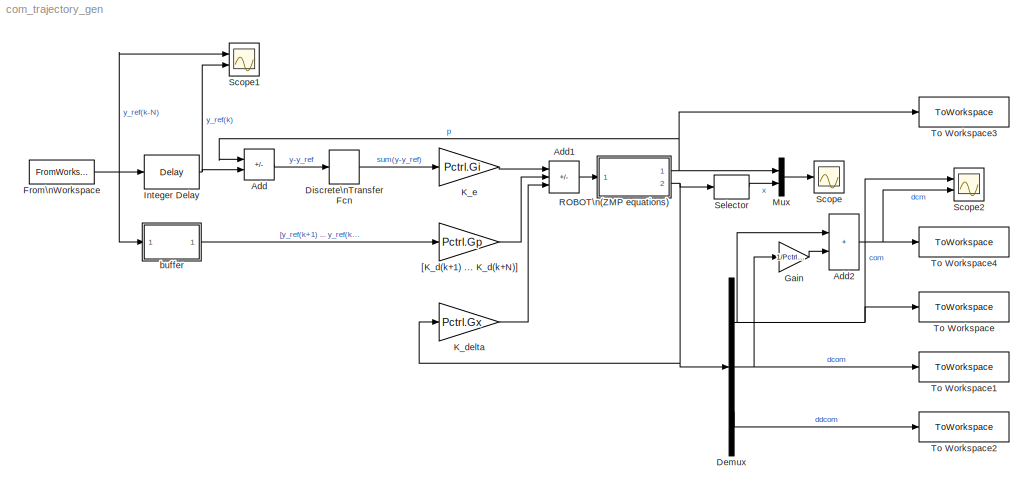
MODEL com_trajectory_gen
KIND model
BLOCK [Sum] Add
  IconShape = rectangular
  Inputs = +-
  Ports = [2, 1]
  SID = 1
BLOCK [Sum] Add1
  IconShape = rectangular
  Inputs = ---
  Ports = [3, 1]
  SID = 2
BLOCK [Sum] Add2
  IconShape = rectangular
  Ports = [2, 1]
  SID = 49
BLOCK [Demux] Demux
  Outputs = 3
  Ports = [1, 3]
  SID = 44
BLOCK [DiscreteTransferFcn] Discrete\nTransfer Fcn
  Denominator = [1 -1]
  InputPortMap = u0
  Ports = [1, 1]
  SID = 4
  SampleTime = Pctrl.Ts
BLOCK [FromWorkspace] From\nWorkspace
  OutputAfterFinalValue = Holding final value
  SID = 53
  SampleTime = Pctrl.Ts
  VariableName = sim_input
BLOCK [Gain] Gain
  Gain = 1/Pctrl.par.omega
  SID = 50
BLOCK [Delay] Integer Delay
  DelayLength = Pctrl.N_L
  InputPortMap = u0
  Ports = [1, 1]
  SID = 8
  SampleTime = Pctrl.Ts
BLOCK [Gain] K_delta
  Gain = Pctrl.Gx
  Multiplication = Matrix(K*u)
  SID = 6
BLOCK [Gain] K_e
  Gain = Pctrl.Gi
  Multiplication = Matrix(K*u)
  SID = 5
BLOCK [Mux] Mux
  DisplayOption = bar
  Inputs = 2
  Ports = [2, 1]
  SID = 9
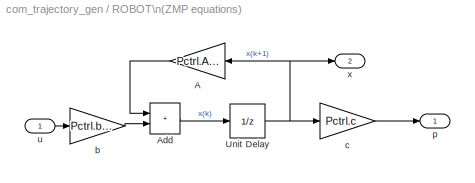
BLOCK [SubSystem] ROBOT\n(ZMP equations)
  Ports = [1, 2]
  RequestExecContextInheritance = off
  SID = 17
BLOCK [Gain] ROBOT\n(ZMP equations)/A
  Gain = Pctrl.A_d
  Multiplication = Matrix(K*u)
  SID = 19
BLOCK [Sum] ROBOT\n(ZMP equations)/Add
  IconShape = rectangular
  Ports = [2, 1]
  SID = 20
BLOCK [UnitDelay] ROBOT\n(ZMP equations)/Unit Delay
  HasFrameUpgradeWarning = on
  InitialCondition = [0,0,0]
  SID = 21
  SampleTime = Pctrl.Ts
BLOCK [Gain] ROBOT\n(ZMP equations)/b
  Gain = Pctrl.b_d
  Multiplication = Matrix(K*u)
  SID = 22
BLOCK [Gain] ROBOT\n(ZMP equations)/c
  Gain = Pctrl.c
  Multiplication = Matrix(K*u)
  SID = 23
BLOCK [Outport] ROBOT\n(ZMP equations)/p
  SID = 24
BLOCK [Inport] ROBOT\n(ZMP equations)/u
  SID = 18
BLOCK [Outport] ROBOT\n(ZMP equations)/x
  Port = 2
  SID = 25
BLOCK [Scope] Scope
  Floating = off
  NumInputPorts = 1
  Ports = [1]
  SID = 10
  ScopeSpecificationString = Simulink.scopes.TimeScopeBlockCfg('CurrentConfiguration', extmgr.ConfigurationSet(extmgr.Configuration('Core','General UI',true),extmgr.Configuration('Core','Source UI',true),extmgr.Configuration('Sources','WiredSimulink',true,'DataLoggingSaveFormat','StructureWithTime','DataLoggingDecimation','1','DataLoggingDecimateData',true),extmgr.Configuration('Visuals','Time Domain',true,'SerializedDisplays...<+1694ch>
BLOCK [Scope] Scope1
  Floating = off
  NumInputPorts = 2
  Ports = [2]
  SID = 11
  ScopeSpecificationString = Simulink.scopes.TimeScopeBlockCfg('CurrentConfiguration', extmgr.ConfigurationSet(extmgr.Configuration('Core','General UI',true),extmgr.Configuration('Core','Source UI',true),extmgr.Configuration('Sources','WiredSimulink',true,'DataLoggingVariableName','ScopeData1','DataLoggingSaveFormat','StructureWithTime','DataLoggingDecimation','1','DataLoggingDecimateData',true),extmgr.Configuration('Visuals'...<+2328ch>
BLOCK [Scope] Scope2
  Floating = off
  NumInputPorts = 2
  Ports = [2]
  SID = 52
  ScopeSpecificationString = Simulink.scopes.TimeScopeBlockCfg('CurrentConfiguration', extmgr.ConfigurationSet(extmgr.Configuration('Core','General UI',true),extmgr.Configuration('Core','Source UI',true),extmgr.Configuration('Sources','WiredSimulink',true,'DataLoggingVariableName','ScopeData1'),extmgr.Configuration('Visuals','Time Domain',true,'SerializedDisplays',{struct('MinYLimReal','-0.14806','MaxYLimReal','0.15275','YLab...<+1418ch>
BLOCK [Selector] Selector
  IndexOptions = Index vector (dialog)
  Indices = 1
  InputPortWidth = 3
  OutputSizes = 1
  Ports = [1, 1]
  SID = 12
BLOCK [ToWorkspace] To Workspace
  FixptAsFi = on
  MaxDataPoints = inf
  Ports = [1]
  SID = 45
  SampleTime = Pctrl.Ts
  SaveFormat = Timeseries
  VariableName = C
BLOCK [ToWorkspace] To Workspace1
  FixptAsFi = on
  MaxDataPoints = inf
  Ports = [1]
  SID = 46
  SampleTime = Pctrl.Ts
  SaveFormat = Timeseries
  VariableName = Cp
BLOCK [ToWorkspace] To Workspace2
  FixptAsFi = on
  MaxDataPoints = inf
  Ports = [1]
  SID = 47
  SampleTime = Pctrl.Ts
  SaveFormat = Timeseries
  VariableName = Cpp
BLOCK [ToWorkspace] To Workspace3
  FixptAsFi = on
  MaxDataPoints = inf
  Ports = [1]
  SID = 48
  SampleTime = Pctrl.Ts
  SaveFormat = Timeseries
  VariableName = P
BLOCK [ToWorkspace] To Workspace4
  FixptAsFi = on
  MaxDataPoints = inf
  Ports = [1]
  SID = 51
  SampleTime = Pctrl.Ts
  SaveFormat = Timeseries
  VariableName = Dcm
BLOCK [Gain] [K_d(k+1) ... K_d(k+N)]
  Gain = Pctrl.Gp
  Multiplication = Matrix(K*u)
  SID = 7
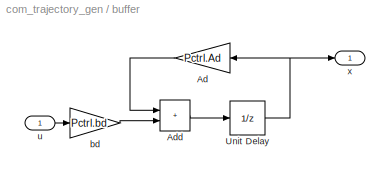
BLOCK [SubSystem] buffer
  Ports = [1, 1]
  RequestExecContextInheritance = off
  SID = 26
BLOCK [Gain] buffer/Ad
  Gain = Pctrl.Ad
  Multiplication = Matrix(K*u)
  SID = 28
BLOCK [Sum] buffer/Add
  IconShape = rectangular
  Ports = [2, 1]
  SID = 29
BLOCK [UnitDelay] buffer/Unit Delay
  HasFrameUpgradeWarning = on
  SID = 30
  SampleTime = Pctrl.Ts
BLOCK [Gain] buffer/bd
  Gain = Pctrl.bd
  Multiplication = Matrix(K*u)
  SID = 31
BLOCK [Inport] buffer/u
  SID = 27
BLOCK [Outport] buffer/x
  SID = 32
LINE Add1:1 -> ROBOT\n(ZMP equations):1
NET Add2:1 -> Scope2:2, To Workspace4:1
LINE Add:1 -> Discrete\nTransfer Fcn:1
NET Demux:1 -> Add2:1, Scope2:1, To Workspace:1
NET Demux:2 -> Gain:1, To Workspace1:1
LINE Demux:3 -> To Workspace2:1
LINE Discrete\nTransfer Fcn:1 -> K_e:1
NET From\nWorkspace:1 -> Integer Delay:1, Scope1:1, buffer:1
LINE Gain:1 -> Add2:2
NET Integer Delay:1 -> Add:2, Scope1:2
LINE K_delta:1 -> Add1:3
LINE K_e:1 -> Add1:1
LINE Mux:1 -> Scope:1
LINE ROBOT\n(ZMP equations)/A:1 -> ROBOT\n(ZMP equations)/Add:1
LINE ROBOT\n(ZMP equations)/Add:1 -> ROBOT\n(ZMP equations)/Unit Delay:1
NET ROBOT\n(ZMP equations)/Unit Delay:1 -> ROBOT\n(ZMP equations)/A:1, ROBOT\n(ZMP equations)/c:1, ROBOT\n(ZMP equations)/x:1
LINE ROBOT\n(ZMP equations)/b:1 -> ROBOT\n(ZMP equations)/Add:2
LINE ROBOT\n(ZMP equations)/c:1 -> ROBOT\n(ZMP equations)/p:1
LINE ROBOT\n(ZMP equations)/u:1 -> ROBOT\n(ZMP equations)/b:1
NET ROBOT\n(ZMP equations):1 -> Add:1, Mux:1, To Workspace3:1
NET ROBOT\n(ZMP equations):2 -> Demux:1, K_delta:1, Selector:1
LINE Selector:1 -> Mux:2
LINE [K_d(k+1) ... K_d(k+N)]:1 -> Add1:2
LINE buffer/Ad:1 -> buffer/Add:1
LINE buffer/Add:1 -> buffer/Unit Delay:1
NET buffer/Unit Delay:1 -> buffer/Ad:1, buffer/x:1
LINE buffer/bd:1 -> buffer/Add:2
LINE buffer/u:1 -> buffer/bd:1
LINE buffer:1 -> [K_d(k+1) ... K_d(k+N)]:1
note: NET lines group one-source signal fan-out (src -> all destinations, sorted); 1:1 wires keep LINE
